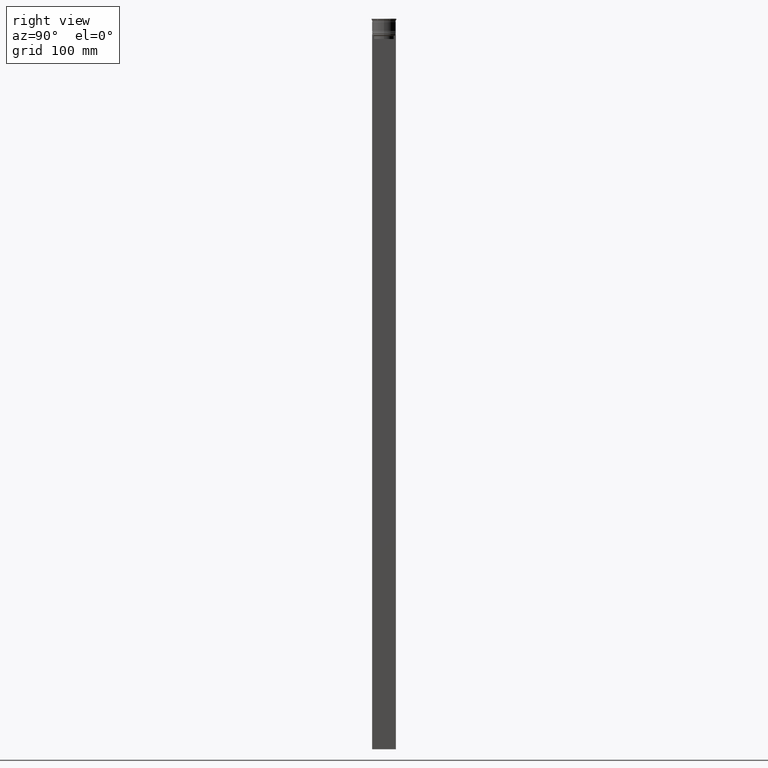
[diagram: clean part render]
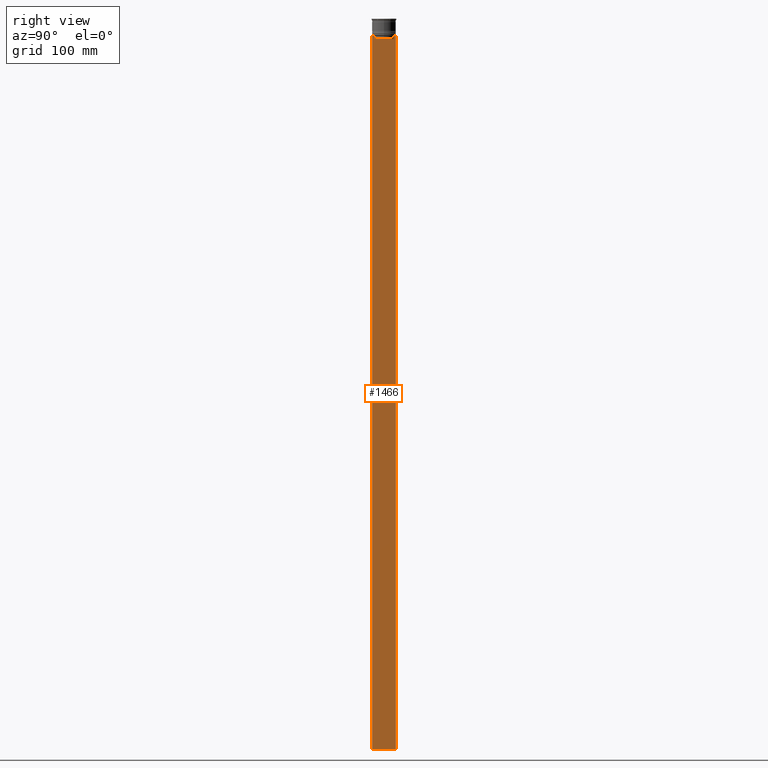
[diagram: same view with one face highlighted and labeled with its STEP entity id]
A machine part, right view. The second image highlights one B-rep face of the part: STEP entity #1466.
In plain terms, the highlighted planar face has unit normal (-1, 0, 0).
Its self-contained STEP definition (entity closure, byte-faithful):
#11 = VERTEX_POINT ( 'NONE', #313 ) ;
#26 = VECTOR ( 'NONE', #2243, 1000.000000000000000 ) ;
#94 = ORIENTED_EDGE ( 'NONE', *, *, #825, .T. ) ;
#135 = EDGE_CURVE ( 'NONE', #1695, #531, #162, .T. ) ;
#140 = CARTESIAN_POINT ( 'NONE',  ( 0.5000000000000000000, -8.552060194457773434, -14.33334167772667023 ) ) ;
#142 = VERTEX_POINT ( 'NONE', #576 ) ;
#150 = CARTESIAN_POINT ( 'NONE',  ( 0.5000000000000000000, -10.00000000000000178, -14.00000000000000178 ) ) ;
#162 = LINE ( 'NONE', #1606, #928 ) ;
#166 = EDGE_CURVE ( 'NONE', #2604, #1220, #1567, .T. ) ;
#178 = CARTESIAN_POINT ( 'NONE',  ( 0.5000000000000000000, -8.719005764482790966, -14.16667454151159689 ) ) ;
#186 = CARTESIAN_POINT ( 'NONE',  ( 0.5000000000000000000, -10.00000000000000178, -14.00000000000000178 ) ) ;
#194 = VECTOR ( 'NONE', #1723, 1000.000000000000000 ) ;
#210 = CARTESIAN_POINT ( 'NONE',  ( 0.5000000000000000000, 8.385105843100616241, -14.50000000000000000 ) ) ;
#245 = ORIENTED_EDGE ( 'NONE', *, *, #1128, .F. ) ;
#253 = EDGE_CURVE ( 'NONE', #377, #1695, #628, .T. ) ;
#254 = DIRECTION ( 'NONE',  ( 0.000000000000000000, -1.000000000000000000, 0.000000000000000000 ) ) ;
#276 = CARTESIAN_POINT ( 'NONE',  ( 0.5000000000000000000, 8.552060201981378285, -14.33334167021640582 ) ) ;
#313 = CARTESIAN_POINT ( 'NONE',  ( 0.5000000000000000000, 8.885943956609230199, -14.00000000000000178 ) ) ;
#377 = VERTEX_POINT ( 'NONE', #150 ) ;
#420 = DIRECTION ( 'NONE',  ( -1.000000000000000000, 0.000000000000000000, 0.000000000000000000 ) ) ;
#455 = EDGE_CURVE ( 'NONE', #1980, #958, #2453, .T. ) ;
#500 = LINE ( 'NONE', #1702, #194 ) ;
#531 = VERTEX_POINT ( 'NONE', #2437 ) ;
#572 = ORIENTED_EDGE ( 'NONE', *, *, #455, .T. ) ;
#576 = CARTESIAN_POINT ( 'NONE',  ( 0.5000000000000000000, -9.887365675446622149, -14.00000000000000178 ) ) ;
#578 = CARTESIAN_POINT ( 'NONE',  ( 0.5000000000000000000, 9.887365675446622149, -14.00000000000000178 ) ) ;
#586 = CARTESIAN_POINT ( 'NONE',  ( 0.5000000000000000000, -8.385105843100616241, -14.50000000000000000 ) ) ;
#591 = ORIENTED_EDGE ( 'NONE', *, *, #253, .T. ) ;
#628 = LINE ( 'NONE', #1454, #2192 ) ;
#654 = ORIENTED_EDGE ( 'NONE', *, *, #1827, .T. ) ;
#679 = CARTESIAN_POINT ( 'NONE',  ( 0.5000000000000000000, 8.385105843100616241, -17.00000000000000000 ) ) ;
#684 = LINE ( 'NONE', #2349, #1711 ) ;
#742 = DIRECTION ( 'NONE',  ( 0.000000000000000000, -1.000000000000000000, 0.000000000000000000 ) ) ;
#793 = LINE ( 'NONE', #186, #26 ) ;
#825 = EDGE_CURVE ( 'NONE', #142, #377, #793, .T. ) ;
#852 = CARTESIAN_POINT ( 'NONE',  ( 0.5000000000000000000, -10.00000000000000178, 6.024984394500783047 ) ) ;
#864 = DIRECTION ( 'NONE',  ( 0.000000000000000000, 0.000000000000000000, 1.000000000000000000 ) ) ;
#888 = EDGE_CURVE ( 'NONE', #1672, #142, #2471, .T. ) ;
#928 = VECTOR ( 'NONE', #2607, 1000.000000000000000 ) ;
#958 = VERTEX_POINT ( 'NONE', #578 ) ;
#962 = CARTESIAN_POINT ( 'NONE',  ( 0.5000000000000000000, -10.00000000000000178, -614.0000000000000000 ) ) ;
#965 = B_SPLINE_CURVE_WITH_KNOTS ( 'NONE', 3,
 ( #1179, #140, #178, #1787 ),
 .UNSPECIFIED., .F., .F.,
 ( 4, 4 ),
 ( 0.03898465126933130243, 0.03969388910599658260 ),
 .UNSPECIFIED. ) ;
#968 = DIRECTION ( 'NONE',  ( 0.000000000000000000, 0.000000000000000000, -1.000000000000000000 ) ) ;
#1009 = CARTESIAN_POINT ( 'NONE',  ( 0.5000000000000000000, -10.00000000000000178, -14.00000000000000178 ) ) ;
#1014 = DIRECTION ( 'NONE',  ( -0.000000000000000000, -0.000000000000000000, 1.000000000000000000 ) ) ;
#1128 = EDGE_CURVE ( 'NONE', #1980, #531, #500, .T. ) ;
#1179 = CARTESIAN_POINT ( 'NONE',  ( 0.5000000000000000000, -8.385105843100616241, -14.50000000000000000 ) ) ;
#1220 = VERTEX_POINT ( 'NONE', #679 ) ;
#1238 = EDGE_LOOP ( 'NONE', ( #1651, #2129, #1995, #1427, #654, #1456, #2136, #94, #591, #1510, #245, #572 ) ) ;
#1271 = PLANE ( 'NONE',  #2052 ) ;
#1281 = VERTEX_POINT ( 'NONE', #586 ) ;
#1339 = CARTESIAN_POINT ( 'NONE',  ( 0.5000000000000000000, -8.385105843100616241, -17.00000000000000000 ) ) ;
#1427 = ORIENTED_EDGE ( 'NONE', *, *, #1430, .T. ) ;
#1430 = EDGE_CURVE ( 'NONE', #1220, #2084, #1640, .T. ) ;
#1454 = CARTESIAN_POINT ( 'NONE',  ( 0.5000000000000000000, -10.00000000000000178, 6.024984394500783047 ) ) ;
#1456 = ORIENTED_EDGE ( 'NONE', *, *, #1750, .T. ) ;
#1466 = ADVANCED_FACE ( 'NONE', ( #2669 ), #1271, .F. ) ;
#1493 = VECTOR ( 'NONE', #2048, 1000.000000000000000 ) ;
#1510 = ORIENTED_EDGE ( 'NONE', *, *, #135, .T. ) ;
#1517 = CARTESIAN_POINT ( 'NONE',  ( 0.5000000000000000000, 8.719005771582347464, -14.16667453442325453 ) ) ;
#1530 = CARTESIAN_POINT ( 'NONE',  ( 0.5000000000000000000, 8.885943956609230199, -14.00000000000000178 ) ) ;
#1567 = LINE ( 'NONE', #1999, #2525 ) ;
#1606 = CARTESIAN_POINT ( 'NONE',  ( 0.5000000000000000000, -10.00000000000000178, -614.0000000000000000 ) ) ;
#1640 = LINE ( 'NONE', #2083, #2143 ) ;
#1648 = EDGE_CURVE ( 'NONE', #11, #2604, #1903, .T. ) ;
#1651 = ORIENTED_EDGE ( 'NONE', *, *, #2153, .T. ) ;
#1672 = VERTEX_POINT ( 'NONE', #2560 ) ;
#1695 = VERTEX_POINT ( 'NONE', #962 ) ;
#1702 = CARTESIAN_POINT ( 'NONE',  ( 0.5000000000000000000, 9.999999999999998224, 6.024984394500783047 ) ) ;
#1711 = VECTOR ( 'NONE', #742, 1000.000000000000000 ) ;
#1723 = DIRECTION ( 'NONE',  ( 0.000000000000000000, 0.000000000000000000, -1.000000000000000000 ) ) ;
#1749 = CARTESIAN_POINT ( 'NONE',  ( 0.5000000000000000000, 8.385105843100616241, -14.50000000000000000 ) ) ;
#1750 = EDGE_CURVE ( 'NONE', #1281, #1672, #965, .T. ) ;
#1787 = CARTESIAN_POINT ( 'NONE',  ( 0.5000000000000000000, -8.885943956609230199, -14.00000000000000178 ) ) ;
#1827 = EDGE_CURVE ( 'NONE', #2084, #1281, #2299, .T. ) ;
#1903 = B_SPLINE_CURVE_WITH_KNOTS ( 'NONE', 3,
 ( #1530, #1517, #276, #1749 ),
 .UNSPECIFIED., .F., .F.,
 ( 4, 4 ),
 ( 0.01511546479386908018, 0.01582316445439079997 ),
 .UNSPECIFIED. ) ;
#1980 = VERTEX_POINT ( 'NONE', #2159 ) ;
#1995 = ORIENTED_EDGE ( 'NONE', *, *, #166, .T. ) ;
#1999 = CARTESIAN_POINT ( 'NONE',  ( 0.5000000000000000000, 8.385105843100616241, 0.000000000000000000 ) ) ;
#2048 = DIRECTION ( 'NONE',  ( 0.000000000000000000, -1.000000000000000000, 0.000000000000000000 ) ) ;
#2052 = AXIS2_PLACEMENT_3D ( 'NONE', #852, #420, #864 ) ;
#2083 = CARTESIAN_POINT ( 'NONE',  ( 0.5000000000000000000, 8.400000000000003908, -17.00000000000000000 ) ) ;
#2084 = VERTEX_POINT ( 'NONE', #1339 ) ;
#2129 = ORIENTED_EDGE ( 'NONE', *, *, #1648, .T. ) ;
#2136 = ORIENTED_EDGE ( 'NONE', *, *, #888, .T. ) ;
#2143 = VECTOR ( 'NONE', #254, 1000.000000000000000 ) ;
#2147 = VECTOR ( 'NONE', #2666, 1000.000000000000000 ) ;
#2153 = EDGE_CURVE ( 'NONE', #958, #11, #684, .T. ) ;
#2159 = CARTESIAN_POINT ( 'NONE',  ( 0.5000000000000000000, 9.999999999999998224, -14.00000000000000178 ) ) ;
#2192 = VECTOR ( 'NONE', #2280, 1000.000000000000000 ) ;
#2226 = VECTOR ( 'NONE', #1014, 1000.000000000000000 ) ;
#2243 = DIRECTION ( 'NONE',  ( 0.000000000000000000, -1.000000000000000000, 0.000000000000000000 ) ) ;
#2270 = CARTESIAN_POINT ( 'NONE',  ( 0.5000000000000000000, -10.00000000000000178, -14.00000000000000178 ) ) ;
#2280 = DIRECTION ( 'NONE',  ( 0.000000000000000000, 0.000000000000000000, -1.000000000000000000 ) ) ;
#2299 = LINE ( 'NONE', #2503, #2226 ) ;
#2349 = CARTESIAN_POINT ( 'NONE',  ( 0.5000000000000000000, -10.00000000000000178, -14.00000000000000178 ) ) ;
#2437 = CARTESIAN_POINT ( 'NONE',  ( 0.5000000000000000000, 9.999999999999998224, -614.0000000000000000 ) ) ;
#2453 = LINE ( 'NONE', #2270, #2147 ) ;
#2471 = LINE ( 'NONE', #1009, #1493 ) ;
#2503 = CARTESIAN_POINT ( 'NONE',  ( 0.5000000000000000000, -8.385105843100616241, 0.000000000000000000 ) ) ;
#2525 = VECTOR ( 'NONE', #968, 1000.000000000000000 ) ;
#2560 = CARTESIAN_POINT ( 'NONE',  ( 0.5000000000000000000, -8.885943956609230199, -14.00000000000000178 ) ) ;
#2604 = VERTEX_POINT ( 'NONE', #210 ) ;
#2607 = DIRECTION ( 'NONE',  ( 0.000000000000000000, 1.000000000000000000, 0.000000000000000000 ) ) ;
#2666 = DIRECTION ( 'NONE',  ( 0.000000000000000000, -1.000000000000000000, 0.000000000000000000 ) ) ;
#2669 = FACE_OUTER_BOUND ( 'NONE', #1238, .T. ) ;